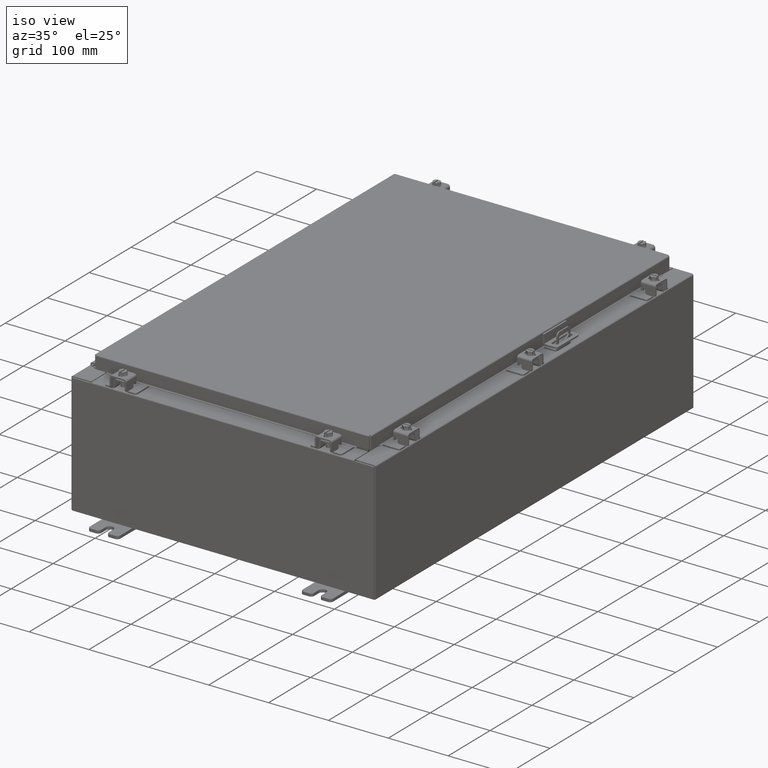
[diagram: clean part render]
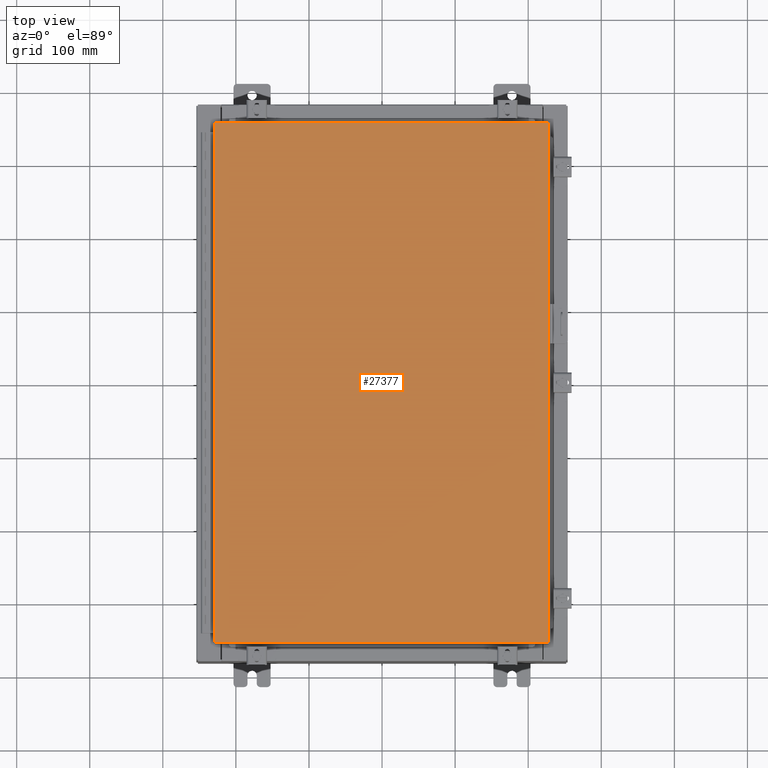
[diagram: tour spotlight — one face highlighted and labeled with its STEP entity id]
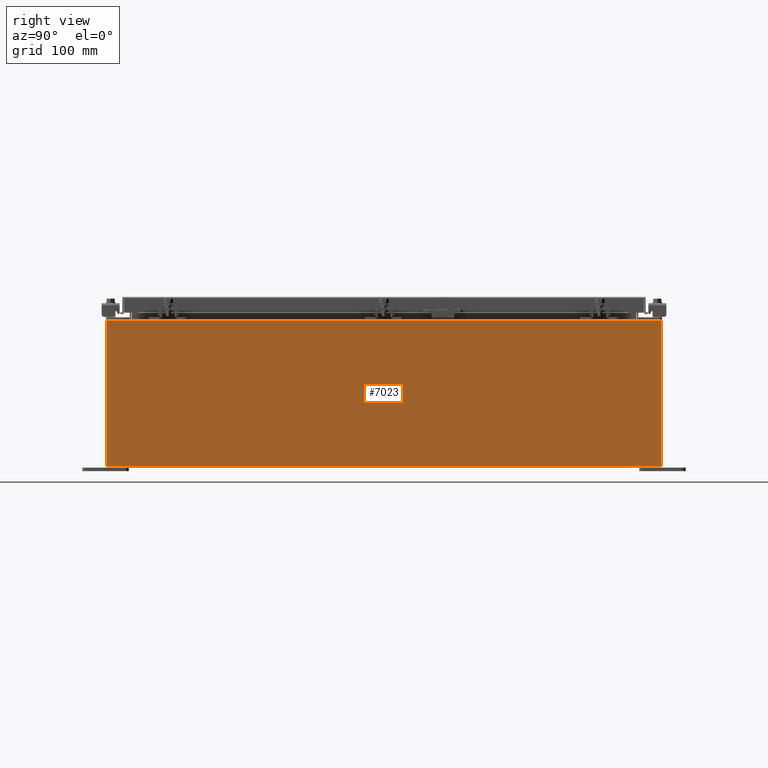
[diagram: tour spotlight — one face highlighted and labeled with its STEP entity id]
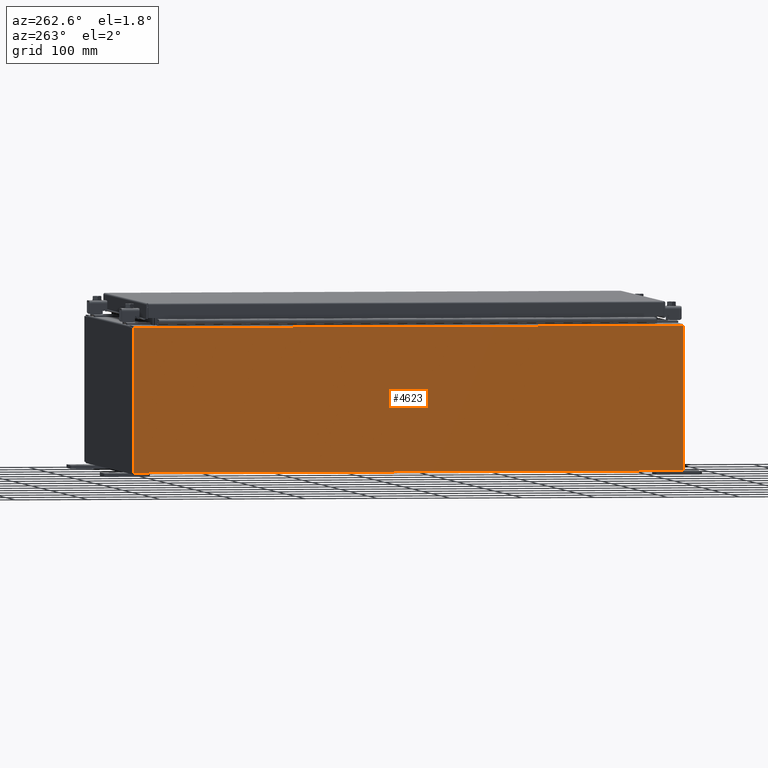
[diagram: tour spotlight — one face highlighted and labeled with its STEP entity id]
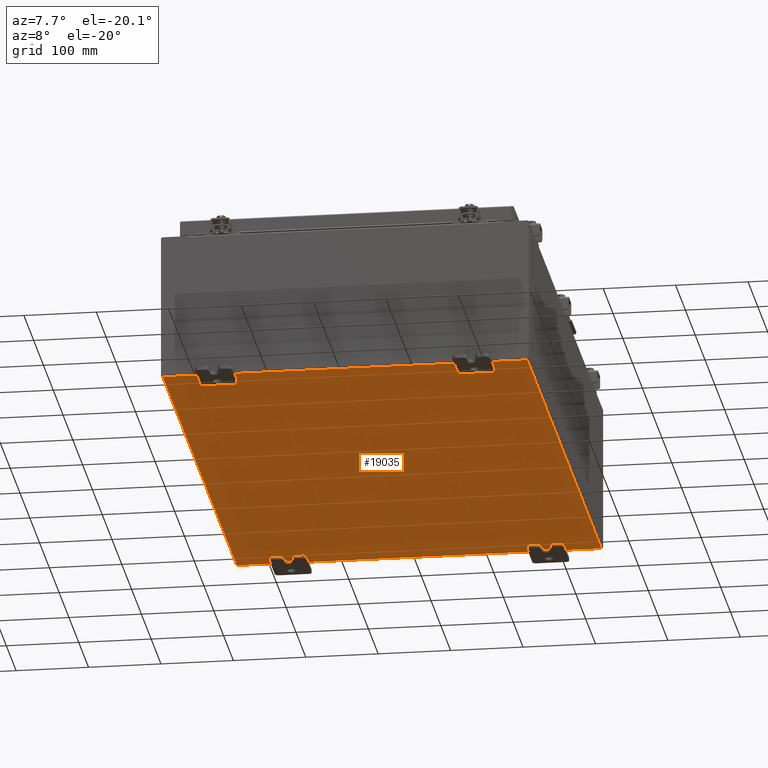
[diagram: tour spotlight — one face highlighted and labeled with its STEP entity id]
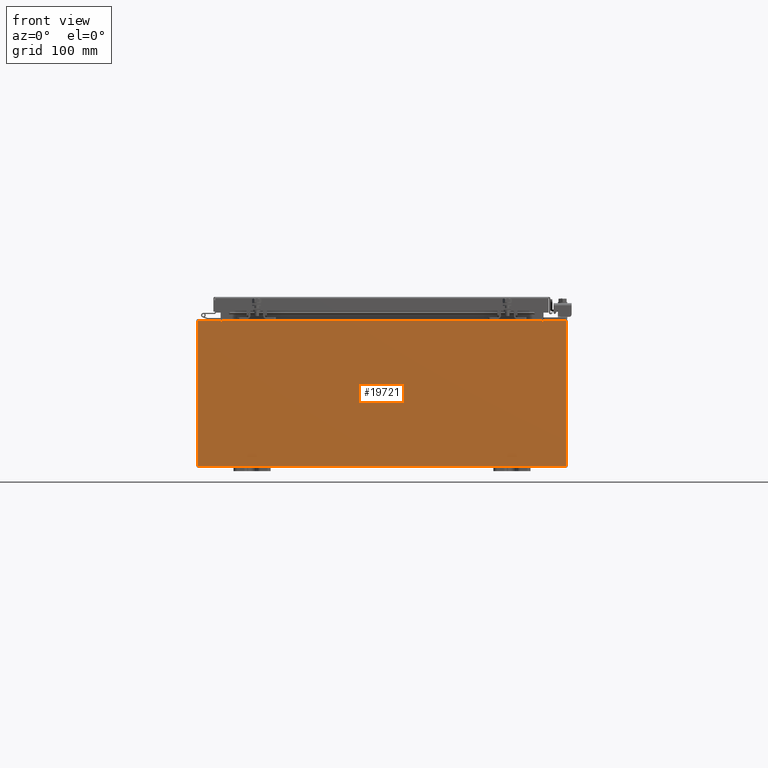
[diagram: tour spotlight — one face highlighted and labeled with its STEP entity id]
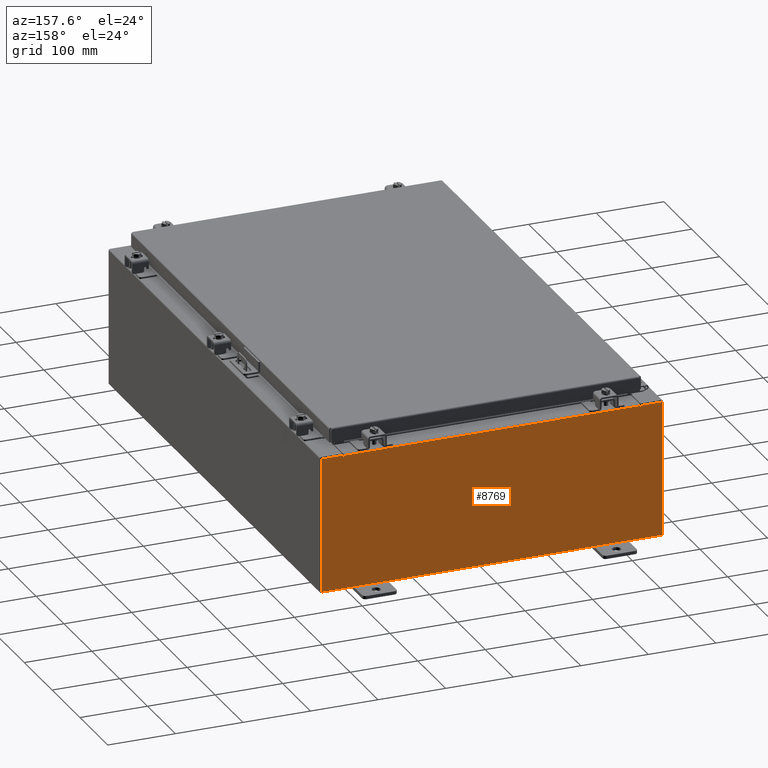
[diagram: tour spotlight — one face highlighted and labeled with its STEP entity id]
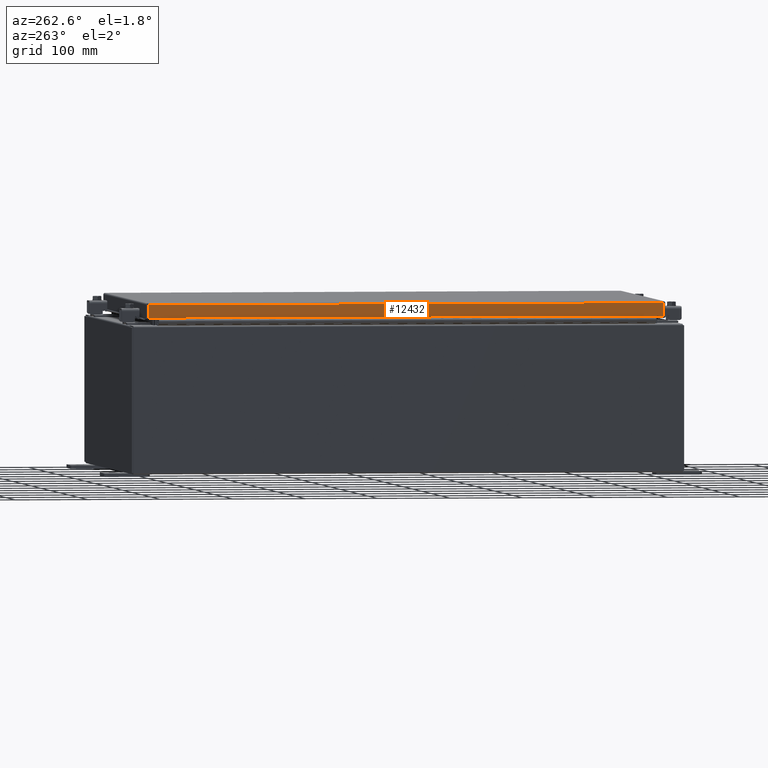
[diagram: tour spotlight — one face highlighted and labeled with its STEP entity id]
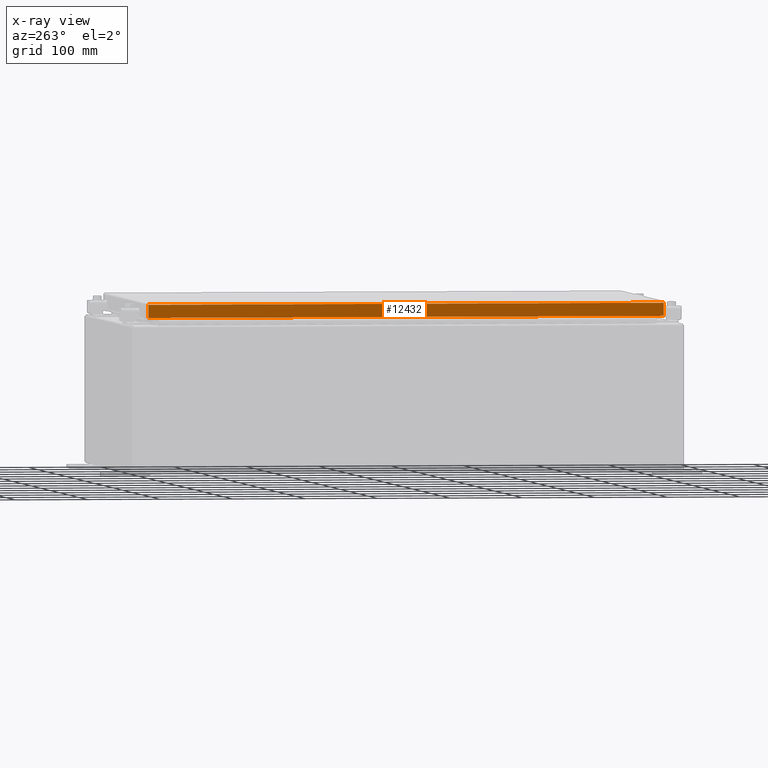
[diagram: x-ray of the same camera — body ghosted, this tour face saturated]
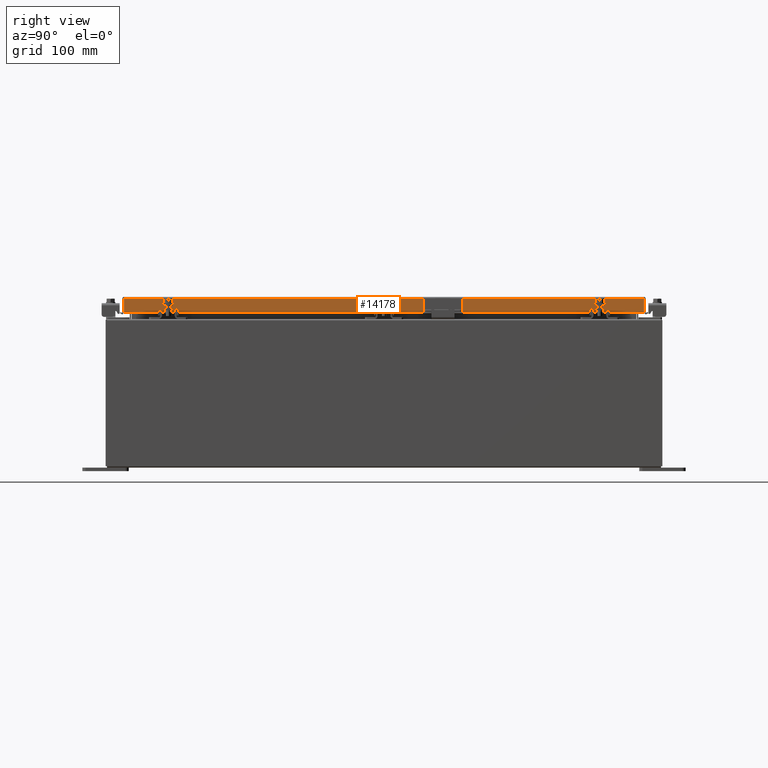
[diagram: tour spotlight — one face highlighted and labeled with its STEP entity id]
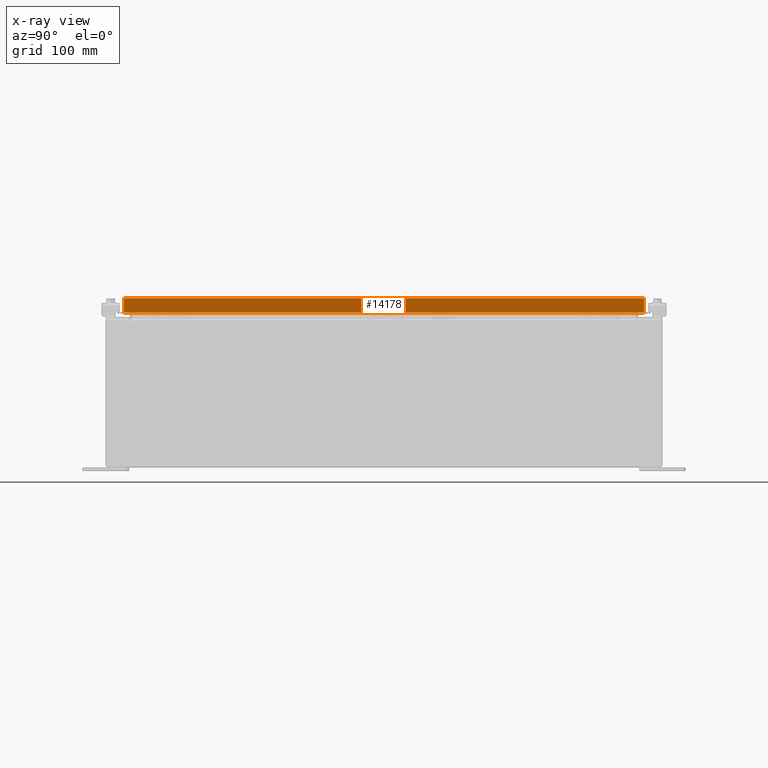
[diagram: x-ray of the same camera — body ghosted, this tour face saturated]
A machine part: a face-by-face anatomy tour. The part has 1990 B-rep faces; the first image is the clean iso view, then the 8 largest visible faces are spotlighted one at a time (largest first), each with its STEP entity span.

Face 1 — top view, entity #27377. In plain terms, the highlighted planar face has unit normal (0, 0, -1).
Definition (entity closure, byte-faithful):
#475 = VERTEX_POINT ( 'NONE', #7114 ) ;
#629 = EDGE_CURVE ( 'NONE', #938, #4079, #14729, .T. ) ;
#938 = VERTEX_POINT ( 'NONE', #13542 ) ;
#2000 = CARTESIAN_POINT ( 'NONE',  ( -8.990299999999997700, -14.00629999999999800, 1.980589795406590900E-015 ) ) ;
#2462 = ORIENTED_EDGE ( 'NONE', *, *, #22999, .T. ) ;
#4079 = VERTEX_POINT ( 'NONE', #2000 ) ;
#5533 = DIRECTION ( 'NONE',  ( -1.000000000000000000, -0.0000000000000000000, -0.0000000000000000000 ) ) ;
#5665 = CARTESIAN_POINT ( 'NONE',  ( 8.990300000000001300, 14.00629999999999800, -2.048885995248197400E-016 ) ) ;
#5849 = VECTOR ( 'NONE', #16493, 39.37007874015748100 ) ;
#7114 = CARTESIAN_POINT ( 'NONE',  ( 8.990300000000001300, 14.00629999999999800, -2.048885995248197400E-016 ) ) ;
#7636 = EDGE_LOOP ( 'NONE', ( #2462, #20378, #21384, #10568 ) ) ;
#8872 = AXIS2_PLACEMENT_3D ( 'NONE', #36419, #36021, #35971 ) ;
#10568 = ORIENTED_EDGE ( 'NONE', *, *, #629, .T. ) ;
#11261 = CARTESIAN_POINT ( 'NONE',  ( 8.990300000000001300, -14.00629999999999800, -7.512581982576723400E-016 ) ) ;
#11635 = DIRECTION ( 'NONE',  ( 0.0000000000000000000, 1.000000000000000000, 0.0000000000000000000 ) ) ;
#13425 = LINE ( 'NONE', #16292, #5849 ) ;
#13542 = CARTESIAN_POINT ( 'NONE',  ( -8.990299999999997700, 14.00630000000000100, -2.048885995248197400E-016 ) ) ;
#14729 = LINE ( 'NONE', #31094, #21573 ) ;
#16292 = CARTESIAN_POINT ( 'NONE',  ( -8.990299999999996000, -14.00629999999999800, 1.963515745446189200E-015 ) ) ;
#16493 = DIRECTION ( 'NONE',  ( 1.000000000000000000, -0.0000000000000000000, -0.0000000000000000000 ) ) ;
#17224 = EDGE_CURVE ( 'NONE', #475, #938, #29372, .T. ) ;
#19343 = VERTEX_POINT ( 'NONE', #35820 ) ;
#20378 = ORIENTED_EDGE ( 'NONE', *, *, #28777, .T. ) ;
#21258 = LINE ( 'NONE', #11261, #28070 ) ;
#21384 = ORIENTED_EDGE ( 'NONE', *, *, #17224, .T. ) ;
#21573 = VECTOR ( 'NONE', #25263, 39.37007874015748100 ) ;
#21648 = VECTOR ( 'NONE', #5533, 39.37007874015748100 ) ;
#22999 = EDGE_CURVE ( 'NONE', #4079, #19343, #13425, .T. ) ;
#25263 = DIRECTION ( 'NONE',  ( 0.0000000000000000000, -1.000000000000000000, 0.0000000000000000000 ) ) ;
#27377 = ADVANCED_FACE ( 'NONE', ( #33611 ), #36030, .F. ) ;
#28070 = VECTOR ( 'NONE', #11635, 39.37007874015748100 ) ;
#28777 = EDGE_CURVE ( 'NONE', #19343, #475, #21258, .T. ) ;
#29372 = LINE ( 'NONE', #5665, #21648 ) ;
#31094 = CARTESIAN_POINT ( 'NONE',  ( -8.990299999999997700, 14.00630000000000100, -2.048885995248197400E-016 ) ) ;
#33611 = FACE_OUTER_BOUND ( 'NONE', #7636, .T. ) ;
#35820 = CARTESIAN_POINT ( 'NONE',  ( 8.990300000000001300, -14.00629999999999800, -7.512581982576723400E-016 ) ) ;
#35971 = DIRECTION ( 'NONE',  ( -1.000000000000000000, 0.0000000000000000000, -0.0000000000000000000 ) ) ;
#36021 = DIRECTION ( 'NONE',  ( 0.0000000000000000000, 0.0000000000000000000, -1.000000000000000000 ) ) ;
#36030 = PLANE ( 'NONE',  #8872 ) ;
#36419 = CARTESIAN_POINT ( 'NONE',  ( 0.0000000000000000000, 0.0000000000000000000, 0.0000000000000000000 ) ) ;

Face 2 — right view, entity #7023. In plain terms, the highlighted planar face has unit normal (-1, 0, 0).
Definition (entity closure, byte-faithful):
#1885 = FACE_OUTER_BOUND ( 'NONE', #34817, .T. ) ;
#2250 = ORIENTED_EDGE ( 'NONE', *, *, #13161, .F. ) ;
#4638 = LINE ( 'NONE', #7031, #27668 ) ;
#6054 = CARTESIAN_POINT ( 'NONE',  ( 10.00000000000000000, 14.92530000000000500, 0.01299999999999984700 ) ) ;
#6240 = VECTOR ( 'NONE', #17016, 39.37007874015748100 ) ;
#6818 = DIRECTION ( 'NONE',  ( -3.584876173029202900E-015, 0.0000000000000000000, -1.000000000000000000 ) ) ;
#7023 = ADVANCED_FACE ( 'NONE', ( #1885 ), #33181, .F. ) ;
#7031 = CARTESIAN_POINT ( 'NONE',  ( 10.00000000000000000, -14.92529999999999600, -3.610957538630361200E-014 ) ) ;
#7993 = ORIENTED_EDGE ( 'NONE', *, *, #30471, .T. ) ;
#8441 = VERTEX_POINT ( 'NONE', #6054 ) ;
#9961 = ORIENTED_EDGE ( 'NONE', *, *, #32206, .T. ) ;
#11631 = LINE ( 'NONE', #16701, #18460 ) ;
#12446 = VERTEX_POINT ( 'NONE', #30244 ) ;
#12506 = AXIS2_PLACEMENT_3D ( 'NONE', #34613, #33097, #33052 ) ;
#13038 = EDGE_CURVE ( 'NONE', #8441, #27690, #14725, .T. ) ;
#13161 = EDGE_CURVE ( 'NONE', #8441, #12446, #32498, .T. ) ;
#14725 = LINE ( 'NONE', #17185, #6240 ) ;
#14907 = DIRECTION ( 'NONE',  ( -0.0000000000000000000, -1.000000000000000000, -0.0000000000000000000 ) ) ;
#15236 = CARTESIAN_POINT ( 'NONE',  ( 10.00000000000000000, -14.92529999999999600, 0.01299999999999984700 ) ) ;
#15367 = VERTEX_POINT ( 'NONE', #21803 ) ;
#15771 = ORIENTED_EDGE ( 'NONE', *, *, #13038, .T. ) ;
#16273 = DIRECTION ( 'NONE',  ( -0.0000000000000000000, -1.000000000000000000, -0.0000000000000000000 ) ) ;
#16701 = CARTESIAN_POINT ( 'NONE',  ( 10.00000000000002800, 14.92530000000000700, 7.837599999999992100 ) ) ;
#16964 = VECTOR ( 'NONE', #14907, 39.37007874015748100 ) ;
#17016 = DIRECTION ( 'NONE',  ( 3.584876173029202900E-015, 0.0000000000000000000, 1.000000000000000000 ) ) ;
#17185 = CARTESIAN_POINT ( 'NONE',  ( 10.00000000000000000, 14.92530000000000500, -3.610957538630361200E-014 ) ) ;
#18460 = VECTOR ( 'NONE', #16273, 39.37007874015748100 ) ;
#21803 = CARTESIAN_POINT ( 'NONE',  ( 10.00000000000002800, -14.92529999999999800, 7.837599999999998300 ) ) ;
#27668 = VECTOR ( 'NONE', #6818, 39.37007874015748100 ) ;
#27690 = VERTEX_POINT ( 'NONE', #30011 ) ;
#30011 = CARTESIAN_POINT ( 'NONE',  ( 10.00000000000002800, 14.92530000000000700, 7.837599999999992100 ) ) ;
#30244 = CARTESIAN_POINT ( 'NONE',  ( 10.00000000000000000, -14.92529999999999600, 0.01299999999999983600 ) ) ;
#30471 = EDGE_CURVE ( 'NONE', #15367, #12446, #4638, .T. ) ;
#32206 = EDGE_CURVE ( 'NONE', #27690, #15367, #11631, .T. ) ;
#32498 = LINE ( 'NONE', #15236, #16964 ) ;
#33052 = DIRECTION ( 'NONE',  ( 3.584876173029202900E-015, 0.0000000000000000000, 1.000000000000000000 ) ) ;
#33097 = DIRECTION ( 'NONE',  ( -1.000000000000000000, 0.0000000000000000000, 3.584876173029202900E-015 ) ) ;
#33181 = PLANE ( 'NONE',  #12506 ) ;
#34613 = CARTESIAN_POINT ( 'NONE',  ( 10.00000000000000000, 0.0000000000000000000, -3.610957538630361200E-014 ) ) ;
#34817 = EDGE_LOOP ( 'NONE', ( #9961, #7993, #2250, #15771 ) ) ;

Face 3 — auxiliary view, entity #4623. In plain terms, the highlighted planar face has unit normal (1, 0, 0).
Definition (entity closure, byte-faithful):
#1056 = CARTESIAN_POINT ( 'NONE',  ( -10.00000000000002800, -14.92529999999999600, 7.837599999999999200 ) ) ;
#1067 = LINE ( 'NONE', #1483, #15369 ) ;
#1483 = CARTESIAN_POINT ( 'NONE',  ( -10.00000000000002800, -14.92529999999999600, 7.837599999999999200 ) ) ;
#2331 = LINE ( 'NONE', #17515, #32169 ) ;
#2554 = VECTOR ( 'NONE', #6923, 39.37007874015748100 ) ;
#3440 = LINE ( 'NONE', #9462, #2554 ) ;
#3816 = CARTESIAN_POINT ( 'NONE',  ( -10.00000000000000000, 14.92530000000000500, 0.01299999999999983600 ) ) ;
#4623 = ADVANCED_FACE ( 'NONE', ( #20427 ), #12580, .F. ) ;
#6583 = VERTEX_POINT ( 'NONE', #17799 ) ;
#6923 = DIRECTION ( 'NONE',  ( 3.584876173029202900E-015, 0.0000000000000000000, -1.000000000000000000 ) ) ;
#8696 = VERTEX_POINT ( 'NONE', #1056 ) ;
#8750 = LINE ( 'NONE', #34552, #18226 ) ;
#9462 = CARTESIAN_POINT ( 'NONE',  ( -10.00000000000000000, 14.92530000000000500, -3.610957538630361200E-014 ) ) ;
#10233 = DIRECTION ( 'NONE',  ( 3.584876173029202900E-015, 0.0000000000000000000, -1.000000000000000000 ) ) ;
#10346 = DIRECTION ( 'NONE',  ( 1.000000000000000000, 0.0000000000000000000, 3.584876173029202900E-015 ) ) ;
#10911 = CARTESIAN_POINT ( 'NONE',  ( -10.00000000000000000, 0.0000000000000000000, -3.610957538630361200E-014 ) ) ;
#12580 = PLANE ( 'NONE',  #14141 ) ;
#13097 = CARTESIAN_POINT ( 'NONE',  ( -10.00000000000000000, -14.92529999999999600, 0.01299999999999984700 ) ) ;
#13756 = VERTEX_POINT ( 'NONE', #3816 ) ;
#14141 = AXIS2_PLACEMENT_3D ( 'NONE', #10911, #10346, #10233 ) ;
#15369 = VECTOR ( 'NONE', #19698, 39.37007874015748100 ) ;
#17515 = CARTESIAN_POINT ( 'NONE',  ( -10.00000000000000000, 14.92530000000000500, 0.01299999999999984700 ) ) ;
#17658 = DIRECTION ( 'NONE',  ( -0.0000000000000000000, 1.000000000000000000, -0.0000000000000000000 ) ) ;
#17799 = CARTESIAN_POINT ( 'NONE',  ( -10.00000000000002800, 14.92530000000000500, 7.837599999999999200 ) ) ;
#18226 = VECTOR ( 'NONE', #33632, 39.37007874015748100 ) ;
#19682 = ORIENTED_EDGE ( 'NONE', *, *, #35098, .T. ) ;
#19698 = DIRECTION ( 'NONE',  ( 0.0000000000000000000, 1.000000000000000000, 0.0000000000000000000 ) ) ;
#20427 = FACE_OUTER_BOUND ( 'NONE', #34152, .T. ) ;
#24668 = ORIENTED_EDGE ( 'NONE', *, *, #31215, .F. ) ;
#26034 = EDGE_CURVE ( 'NONE', #33708, #8696, #8750, .T. ) ;
#28820 = ORIENTED_EDGE ( 'NONE', *, *, #30523, .T. ) ;
#30523 = EDGE_CURVE ( 'NONE', #8696, #6583, #1067, .T. ) ;
#31215 = EDGE_CURVE ( 'NONE', #33708, #13756, #2331, .T. ) ;
#32169 = VECTOR ( 'NONE', #17658, 39.37007874015748100 ) ;
#33632 = DIRECTION ( 'NONE',  ( -3.584876173029202900E-015, 0.0000000000000000000, 1.000000000000000000 ) ) ;
#33708 = VERTEX_POINT ( 'NONE', #13097 ) ;
#34027 = ORIENTED_EDGE ( 'NONE', *, *, #26034, .T. ) ;
#34152 = EDGE_LOOP ( 'NONE', ( #28820, #19682, #24668, #34027 ) ) ;
#34552 = CARTESIAN_POINT ( 'NONE',  ( -10.00000000000000000, -14.92529999999999600, -3.610957538630361200E-014 ) ) ;
#35098 = EDGE_CURVE ( 'NONE', #6583, #13756, #3440, .T. ) ;

Face 4 — auxiliary view, entity #19035. In plain terms, the highlighted planar face has unit normal (0, 0, -1).
Definition (entity closure, byte-faithful):
#1306 = ORIENTED_EDGE ( 'NONE', *, *, #33336, .T. ) ;
#1864 = VERTEX_POINT ( 'NONE', #28387 ) ;
#4237 = CARTESIAN_POINT ( 'NONE',  ( -9.912300000000000100, 14.92530000000000500, -0.07470000000000000300 ) ) ;
#5539 = DIRECTION ( 'NONE',  ( -1.000000000000000000, 0.0000000000000000000, -0.0000000000000000000 ) ) ;
#5587 = DIRECTION ( 'NONE',  ( 0.0000000000000000000, 0.0000000000000000000, -1.000000000000000000 ) ) ;
#5623 = CARTESIAN_POINT ( 'NONE',  ( 0.0000000000000000000, 0.0000000000000000000, -0.07470000000000000300 ) ) ;
#5790 = PLANE ( 'NONE',  #23999 ) ;
#6225 = LINE ( 'NONE', #20234, #36181 ) ;
#8516 = VERTEX_POINT ( 'NONE', #4237 ) ;
#8638 = ORIENTED_EDGE ( 'NONE', *, *, #10090, .T. ) ;
#9033 = VERTEX_POINT ( 'NONE', #18899 ) ;
#9599 = VECTOR ( 'NONE', #25230, 39.37007874015748100 ) ;
#10090 = EDGE_CURVE ( 'NONE', #9033, #8516, #11364, .T. ) ;
#10106 = ORIENTED_EDGE ( 'NONE', *, *, #18287, .F. ) ;
#10256 = LINE ( 'NONE', #19918, #24765 ) ;
#11364 = LINE ( 'NONE', #25075, #9599 ) ;
#12739 = CARTESIAN_POINT ( 'NONE',  ( 9.912300000000000100, 14.92530000000000500, -0.07469999999999994700 ) ) ;
#18287 = EDGE_CURVE ( 'NONE', #37270, #8516, #10256, .T. ) ;
#18899 = CARTESIAN_POINT ( 'NONE',  ( -9.912300000000000100, -14.92529999999999600, -0.07469999999999994700 ) ) ;
#19035 = ADVANCED_FACE ( 'NONE', ( #30156 ), #5790, .T. ) ;
#19787 = EDGE_LOOP ( 'NONE', ( #28441, #8638, #10106, #1306 ) ) ;
#19918 = CARTESIAN_POINT ( 'NONE',  ( -10.00000000000000000, 14.92530000000000500, -0.07470000000000000300 ) ) ;
#20072 = DIRECTION ( 'NONE',  ( -1.000000000000000000, -0.0000000000000000000, -0.0000000000000000000 ) ) ;
#20132 = DIRECTION ( 'NONE',  ( -0.0000000000000000000, -1.000000000000000000, -0.0000000000000000000 ) ) ;
#20234 = CARTESIAN_POINT ( 'NONE',  ( 9.912300000000000100, 14.92530000000000500, -0.07469999999999994700 ) ) ;
#20936 = VECTOR ( 'NONE', #31343, 39.37007874015748100 ) ;
#21514 = EDGE_CURVE ( 'NONE', #9033, #1864, #21841, .T. ) ;
#21841 = LINE ( 'NONE', #31574, #20936 ) ;
#23999 = AXIS2_PLACEMENT_3D ( 'NONE', #5623, #5587, #5539 ) ;
#24765 = VECTOR ( 'NONE', #20072, 39.37007874015748100 ) ;
#25075 = CARTESIAN_POINT ( 'NONE',  ( -9.912300000000000100, -14.92529999999999600, -0.07469999999999994700 ) ) ;
#25230 = DIRECTION ( 'NONE',  ( -0.0000000000000000000, 1.000000000000000000, -0.0000000000000000000 ) ) ;
#28387 = CARTESIAN_POINT ( 'NONE',  ( 9.912300000000000100, -14.92529999999999600, -0.07470000000000000300 ) ) ;
#28441 = ORIENTED_EDGE ( 'NONE', *, *, #21514, .F. ) ;
#30156 = FACE_OUTER_BOUND ( 'NONE', #19787, .T. ) ;
#31343 = DIRECTION ( 'NONE',  ( 1.000000000000000000, 0.0000000000000000000, 0.0000000000000000000 ) ) ;
#31574 = CARTESIAN_POINT ( 'NONE',  ( -10.00000000000000000, -14.92529999999999600, -0.07470000000000000300 ) ) ;
#33336 = EDGE_CURVE ( 'NONE', #37270, #1864, #6225, .T. ) ;
#36181 = VECTOR ( 'NONE', #20132, 39.37007874015748100 ) ;
#37270 = VERTEX_POINT ( 'NONE', #12739 ) ;

Face 5 — front view, entity #19721. In plain terms, the highlighted planar face has unit normal (-0, 1, -0).
Definition (entity closure, byte-faithful):
#520 = EDGE_CURVE ( 'NONE', #16435, #26820, #16533, .T. ) ;
#1072 = DIRECTION ( 'NONE',  ( 0.0000000000000000000, -0.0000000000000000000, -1.000000000000000000 ) ) ;
#1108 = LINE ( 'NONE', #16418, #7796 ) ;
#1341 = DIRECTION ( 'NONE',  ( -1.000000000000000000, -0.0000000000000000000, -0.0000000000000000000 ) ) ;
#1382 = VERTEX_POINT ( 'NONE', #28411 ) ;
#1504 = CARTESIAN_POINT ( 'NONE',  ( -9.925300000000000000, 0.0000000000000000000, -3.925299999999999600 ) ) ;
#1626 = VECTOR ( 'NONE', #16230, 39.37007874015748100 ) ;
#1724 = ORIENTED_EDGE ( 'NONE', *, *, #16100, .T. ) ;
#2314 = AXIS2_PLACEMENT_3D ( 'NONE', #25347, #34207, #8509 ) ;
#2398 = CARTESIAN_POINT ( 'NONE',  ( 0.0000000000000000000, 0.0000000000000000000, 0.0000000000000000000 ) ) ;
#2740 = CARTESIAN_POINT ( 'NONE',  ( 8.674550000000000000, 0.0000000000000000000, 3.874949999999999700 ) ) ;
#2780 = CARTESIAN_POINT ( 'NONE',  ( -9.925300000000000000, 0.0000000000000000000, 3.925299999999999600 ) ) ;
#3117 = DIRECTION ( 'NONE',  ( 0.0000000000000000000, -1.000000000000000000, 0.0000000000000000000 ) ) ;
#3207 = DIRECTION ( 'NONE',  ( 1.000000000000000000, 0.0000000000000000000, 0.0000000000000000000 ) ) ;
#3434 = FACE_OUTER_BOUND ( 'NONE', #23577, .T. ) ;
#4383 = LINE ( 'NONE', #2780, #10190 ) ;
#4990 = VECTOR ( 'NONE', #1341, 39.37007874015748100 ) ;
#4994 = CARTESIAN_POINT ( 'NONE',  ( 9.925300000000000000, 0.0000000000000000000, 3.925299999999999600 ) ) ;
#5119 = VERTEX_POINT ( 'NONE', #37177 ) ;
#5676 = EDGE_CURVE ( 'NONE', #9107, #33874, #1108, .T. ) ;
#6220 = CARTESIAN_POINT ( 'NONE',  ( 8.637200000000000000, 0.0000000000000000000, 3.874949999999999700 ) ) ;
#6231 = CARTESIAN_POINT ( 'NONE',  ( -8.637199999999996400, -0.0000000000000000000, 3.874949999999999700 ) ) ;
#6502 = VECTOR ( 'NONE', #28205, 39.37007874015748100 ) ;
#6802 = ORIENTED_EDGE ( 'NONE', *, *, #19164, .T. ) ;
#7770 = ORIENTED_EDGE ( 'NONE', *, *, #26327, .T. ) ;
#7796 = VECTOR ( 'NONE', #16341, 39.37007874015748100 ) ;
#8110 = ORIENTED_EDGE ( 'NONE', *, *, #5676, .T. ) ;
#8509 = DIRECTION ( 'NONE',  ( 0.0000000000000000000, 0.0000000000000000000, -1.000000000000000000 ) ) ;
#8851 = DIRECTION ( 'NONE',  ( -0.0000000000000000000, -0.0000000000000000000, 1.000000000000000000 ) ) ;
#9093 = CARTESIAN_POINT ( 'NONE',  ( -9.925300000000000000, 0.0000000000000000000, 3.925299999999999600 ) ) ;
#9107 = VERTEX_POINT ( 'NONE', #14871 ) ;
#9243 = CARTESIAN_POINT ( 'NONE',  ( 8.637200000000000000, 0.0000000000000000000, 0.0000000000000000000 ) ) ;
#10190 = VECTOR ( 'NONE', #3207, 39.37007874015748100 ) ;
#10303 = CARTESIAN_POINT ( 'NONE',  ( 8.637200000000000000, 0.0000000000000000000, 3.912299999999999700 ) ) ;
#12053 = CARTESIAN_POINT ( 'NONE',  ( -9.925300000000000000, 0.0000000000000000000, -3.925299999999999600 ) ) ;
#12595 = LINE ( 'NONE', #1504, #4990 ) ;
#14018 = DIRECTION ( 'NONE',  ( 0.0000000000000000000, 0.0000000000000000000, 1.000000000000000000 ) ) ;
#14095 = CARTESIAN_POINT ( 'NONE',  ( -8.674549999999996400, -0.0000000000000000000, 0.0000000000000000000 ) ) ;
#14738 = LINE ( 'NONE', #9243, #37096 ) ;
#14871 = CARTESIAN_POINT ( 'NONE',  ( -8.637199999999996400, 1.024442997624098700E-016, 3.912299999999999700 ) ) ;
#15188 = AXIS2_PLACEMENT_3D ( 'NONE', #18420, #18322, #18290 ) ;
#15419 = CARTESIAN_POINT ( 'NONE',  ( -8.674549999999996400, 0.0000000000000000000, 3.925299999999999600 ) ) ;
#15713 = EDGE_CURVE ( 'NONE', #17912, #19080, #16826, .T. ) ;
#15797 = DIRECTION ( 'NONE',  ( 0.0000000000000000000, 0.0000000000000000000, -1.000000000000000000 ) ) ;
#15894 = PLANE ( 'NONE',  #22645 ) ;
#16100 = EDGE_CURVE ( 'NONE', #28733, #35049, #16798, .T. ) ;
#16221 = CARTESIAN_POINT ( 'NONE',  ( -9.925300000000000000, 0.0000000000000000000, 3.925299999999999600 ) ) ;
#16230 = DIRECTION ( 'NONE',  ( 1.000000000000000000, 0.0000000000000000000, 0.0000000000000000000 ) ) ;
#16341 = DIRECTION ( 'NONE',  ( 1.000000000000000000, 0.0000000000000000000, 0.0000000000000000000 ) ) ;
#16410 = ORIENTED_EDGE ( 'NONE', *, *, #23602, .F. ) ;
#16418 = CARTESIAN_POINT ( 'NONE',  ( -8.637200000000000000, 1.024442997624098700E-016, 3.912299999999999700 ) ) ;
#16435 = VERTEX_POINT ( 'NONE', #2740 ) ;
#16533 = CIRCLE ( 'NONE', #2314, 0.01867500000000003900 ) ;
#16798 = LINE ( 'NONE', #9093, #31414 ) ;
#16826 = LINE ( 'NONE', #16221, #1626 ) ;
#17329 = ORIENTED_EDGE ( 'NONE', *, *, #29272, .T. ) ;
#17912 = VERTEX_POINT ( 'NONE', #26594 ) ;
#17997 = EDGE_CURVE ( 'NONE', #17912, #16435, #26120, .T. ) ;
#18290 = DIRECTION ( 'NONE',  ( 0.0000000000000000000, 0.0000000000000000000, -1.000000000000000000 ) ) ;
#18322 = DIRECTION ( 'NONE',  ( -0.0000000000000000000, 1.000000000000000000, -0.0000000000000000000 ) ) ;
#18420 = CARTESIAN_POINT ( 'NONE',  ( -8.655874999999996400, 0.0000000000000000000, 3.874949999999999700 ) ) ;
#18628 = EDGE_CURVE ( 'NONE', #5119, #36687, #21550, .T. ) ;
#19080 = VERTEX_POINT ( 'NONE', #4994 ) ;
#19164 = EDGE_CURVE ( 'NONE', #35049, #36687, #4383, .T. ) ;
#19721 = ADVANCED_FACE ( 'NONE', ( #3434 ), #15894, .F. ) ;
#19773 = VECTOR ( 'NONE', #15797, 39.37007874015748100 ) ;
#20699 = LINE ( 'NONE', #24325, #19773 ) ;
#21550 = LINE ( 'NONE', #14095, #36178 ) ;
#22645 = AXIS2_PLACEMENT_3D ( 'NONE', #2398, #3117, #1072 ) ;
#23577 = EDGE_LOOP ( 'NONE', ( #34706, #16410, #24416, #8110, #34424, #24644, #28729, #35276, #7770, #17329, #1724, #6802 ) ) ;
#23602 = EDGE_CURVE ( 'NONE', #35417, #5119, #25205, .T. ) ;
#23755 = DIRECTION ( 'NONE',  ( 0.0000000000000000000, 0.0000000000000000000, 1.000000000000000000 ) ) ;
#24325 = CARTESIAN_POINT ( 'NONE',  ( -8.637199999999996400, -0.0000000000000000000, 0.0000000000000000000 ) ) ;
#24416 = ORIENTED_EDGE ( 'NONE', *, *, #36756, .F. ) ;
#24638 = CARTESIAN_POINT ( 'NONE',  ( 8.674549999999747700, -0.0000000000000000000, -5.647877341832665300E-013 ) ) ;
#24644 = ORIENTED_EDGE ( 'NONE', *, *, #520, .F. ) ;
#24733 = DIRECTION ( 'NONE',  ( -6.510859170600007400E-014, 0.0000000000000000000, -1.000000000000000000 ) ) ;
#25205 = CIRCLE ( 'NONE', #15188, 0.01867500000000003900 ) ;
#25222 = VECTOR ( 'NONE', #24733, 39.37007874015748100 ) ;
#25347 = CARTESIAN_POINT ( 'NONE',  ( 8.655875000000000000, 0.0000000000000000000, 3.874949999999999700 ) ) ;
#26120 = LINE ( 'NONE', #24638, #25222 ) ;
#26327 = EDGE_CURVE ( 'NONE', #19080, #1382, #37348, .T. ) ;
#26594 = CARTESIAN_POINT ( 'NONE',  ( 8.674550000000001800, 0.0000000000000000000, 3.925299999999999600 ) ) ;
#26820 = VERTEX_POINT ( 'NONE', #6220 ) ;
#28205 = DIRECTION ( 'NONE',  ( 0.0000000000000000000, 0.0000000000000000000, -1.000000000000000000 ) ) ;
#28411 = CARTESIAN_POINT ( 'NONE',  ( 9.925300000000000000, 0.0000000000000000000, -3.925299999999999600 ) ) ;
#28729 = ORIENTED_EDGE ( 'NONE', *, *, #17997, .F. ) ;
#28733 = VERTEX_POINT ( 'NONE', #12053 ) ;
#29272 = EDGE_CURVE ( 'NONE', #1382, #28733, #12595, .T. ) ;
#31414 = VECTOR ( 'NONE', #8851, 39.37007874015748100 ) ;
#32526 = CARTESIAN_POINT ( 'NONE',  ( 9.925300000000000000, 0.0000000000000000000, 3.925299999999999600 ) ) ;
#32634 = CARTESIAN_POINT ( 'NONE',  ( -9.925300000000000000, 0.0000000000000000000, 3.925299999999999600 ) ) ;
#33874 = VERTEX_POINT ( 'NONE', #10303 ) ;
#34207 = DIRECTION ( 'NONE',  ( -0.0000000000000000000, 1.000000000000000000, -0.0000000000000000000 ) ) ;
#34424 = ORIENTED_EDGE ( 'NONE', *, *, #37147, .F. ) ;
#34706 = ORIENTED_EDGE ( 'NONE', *, *, #18628, .F. ) ;
#35049 = VERTEX_POINT ( 'NONE', #32634 ) ;
#35276 = ORIENTED_EDGE ( 'NONE', *, *, #15713, .T. ) ;
#35417 = VERTEX_POINT ( 'NONE', #6231 ) ;
#36178 = VECTOR ( 'NONE', #14018, 39.37007874015748100 ) ;
#36687 = VERTEX_POINT ( 'NONE', #15419 ) ;
#36756 = EDGE_CURVE ( 'NONE', #9107, #35417, #20699, .T. ) ;
#37096 = VECTOR ( 'NONE', #23755, 39.37007874015748100 ) ;
#37147 = EDGE_CURVE ( 'NONE', #26820, #33874, #14738, .T. ) ;
#37177 = CARTESIAN_POINT ( 'NONE',  ( -8.674549999999996400, 0.0000000000000000000, 3.874949999999999700 ) ) ;
#37348 = LINE ( 'NONE', #32526, #6502 ) ;

Face 6 — auxiliary view, entity #8769. In plain terms, the highlighted planar face has unit normal (0, -1, 0).
Definition (entity closure, byte-faithful):
#79 = CARTESIAN_POINT ( 'NONE',  ( -8.637199999999996400, -0.0000000000000000000, 3.874949999999999700 ) ) ;
#951 = VERTEX_POINT ( 'NONE', #15082 ) ;
#1555 = AXIS2_PLACEMENT_3D ( 'NONE', #32882, #32871, #32840 ) ;
#2615 = ORIENTED_EDGE ( 'NONE', *, *, #37365, .T. ) ;
#2664 = VECTOR ( 'NONE', #7454, 39.37007874015748100 ) ;
#3214 = VECTOR ( 'NONE', #10023, 39.37007874015748100 ) ;
#3333 = ORIENTED_EDGE ( 'NONE', *, *, #10297, .T. ) ;
#3950 = EDGE_CURVE ( 'NONE', #27489, #37186, #24597, .T. ) ;
#4500 = CARTESIAN_POINT ( 'NONE',  ( 8.637200000000000000, 0.0000000000000000000, 3.912299999999999700 ) ) ;
#4911 = DIRECTION ( 'NONE',  ( 0.0000000000000000000, 0.0000000000000000000, 1.000000000000000000 ) ) ;
#4943 = CARTESIAN_POINT ( 'NONE',  ( -8.674549999999996400, -0.0000000000000000000, 0.0000000000000000000 ) ) ;
#5098 = DIRECTION ( 'NONE',  ( -0.0000000000000000000, 1.000000000000000000, -0.0000000000000000000 ) ) ;
#7034 = VECTOR ( 'NONE', #28656, 39.37007874015748100 ) ;
#7437 = VECTOR ( 'NONE', #4911, 39.37007874015748100 ) ;
#7454 = DIRECTION ( 'NONE',  ( -0.0000000000000000000, -0.0000000000000000000, 1.000000000000000000 ) ) ;
#7485 = DIRECTION ( 'NONE',  ( 1.000000000000000000, 0.0000000000000000000, 0.0000000000000000000 ) ) ;
#7583 = CARTESIAN_POINT ( 'NONE',  ( -9.925300000000000000, 0.0000000000000000000, 3.925299999999999600 ) ) ;
#8302 = DIRECTION ( 'NONE',  ( -1.000000000000000000, -0.0000000000000000000, -0.0000000000000000000 ) ) ;
#8341 = CARTESIAN_POINT ( 'NONE',  ( -9.925300000000000000, 0.0000000000000000000, -3.925299999999999600 ) ) ;
#8363 = EDGE_CURVE ( 'NONE', #951, #27988, #11134, .T. ) ;
#8443 = ORIENTED_EDGE ( 'NONE', *, *, #28844, .F. ) ;
#8769 = ADVANCED_FACE ( 'NONE', ( #36182 ), #37230, .F. ) ;
#8971 = CARTESIAN_POINT ( 'NONE',  ( 8.674550000000001800, 0.0000000000000000000, 3.925299999999999600 ) ) ;
#9027 = VERTEX_POINT ( 'NONE', #15291 ) ;
#9206 = CARTESIAN_POINT ( 'NONE',  ( 8.674550000000000000, 0.0000000000000000000, 3.874949999999999700 ) ) ;
#9663 = EDGE_CURVE ( 'NONE', #31811, #27489, #15558, .T. ) ;
#10023 = DIRECTION ( 'NONE',  ( 0.0000000000000000000, 0.0000000000000000000, -1.000000000000000000 ) ) ;
#10193 = CARTESIAN_POINT ( 'NONE',  ( -8.637199999999996400, -0.0000000000000000000, 0.0000000000000000000 ) ) ;
#10297 = EDGE_CURVE ( 'NONE', #18877, #31071, #15856, .T. ) ;
#10336 = CARTESIAN_POINT ( 'NONE',  ( -8.637200000000000000, 1.024442997624098700E-016, 3.912299999999999700 ) ) ;
#10689 = VECTOR ( 'NONE', #17330, 39.37007874015748100 ) ;
#11134 = LINE ( 'NONE', #7583, #2664 ) ;
#12008 = CARTESIAN_POINT ( 'NONE',  ( 9.925300000000000000, 0.0000000000000000000, 3.925299999999999600 ) ) ;
#12088 = ORIENTED_EDGE ( 'NONE', *, *, #3950, .F. ) ;
#12093 = DIRECTION ( 'NONE',  ( 0.0000000000000000000, 0.0000000000000000000, -1.000000000000000000 ) ) ;
#12634 = LINE ( 'NONE', #10193, #3214 ) ;
#13856 = VECTOR ( 'NONE', #31869, 39.37007874015748100 ) ;
#14294 = ORIENTED_EDGE ( 'NONE', *, *, #25114, .T. ) ;
#14360 = AXIS2_PLACEMENT_3D ( 'NONE', #23194, #5098, #23153 ) ;
#14990 = ORIENTED_EDGE ( 'NONE', *, *, #9663, .F. ) ;
#15082 = CARTESIAN_POINT ( 'NONE',  ( -9.925300000000000000, 0.0000000000000000000, -3.925299999999999600 ) ) ;
#15291 = CARTESIAN_POINT ( 'NONE',  ( 9.925300000000000000, 0.0000000000000000000, -3.925299999999999600 ) ) ;
#15558 = CIRCLE ( 'NONE', #1555, 0.01867500000000003900 ) ;
#15656 = LINE ( 'NONE', #17289, #10689 ) ;
#15856 = LINE ( 'NONE', #21885, #23592 ) ;
#17243 = VERTEX_POINT ( 'NONE', #4500 ) ;
#17289 = CARTESIAN_POINT ( 'NONE',  ( 8.637200000000000000, 0.0000000000000000000, 0.0000000000000000000 ) ) ;
#17330 = DIRECTION ( 'NONE',  ( 0.0000000000000000000, 0.0000000000000000000, 1.000000000000000000 ) ) ;
#18610 = ORIENTED_EDGE ( 'NONE', *, *, #22198, .T. ) ;
#18877 = VERTEX_POINT ( 'NONE', #8971 ) ;
#18897 = EDGE_CURVE ( 'NONE', #9027, #951, #34757, .T. ) ;
#20405 = EDGE_LOOP ( 'NONE', ( #12088, #14990, #8443, #2615, #33359, #22086, #28050, #3333, #18610, #33561, #35760, #14294 ) ) ;
#21034 = DIRECTION ( 'NONE',  ( 1.000000000000000000, 0.0000000000000000000, 0.0000000000000000000 ) ) ;
#21226 = CARTESIAN_POINT ( 'NONE',  ( 9.925300000000000000, 0.0000000000000000000, 3.925299999999999600 ) ) ;
#21350 = LINE ( 'NONE', #12008, #36858 ) ;
#21885 = CARTESIAN_POINT ( 'NONE',  ( -9.925300000000000000, 0.0000000000000000000, 3.925299999999999600 ) ) ;
#22011 = VECTOR ( 'NONE', #7485, 39.37007874015748100 ) ;
#22086 = ORIENTED_EDGE ( 'NONE', *, *, #24401, .F. ) ;
#22198 = EDGE_CURVE ( 'NONE', #31071, #9027, #21350, .T. ) ;
#22872 = CIRCLE ( 'NONE', #14360, 0.01867500000000003900 ) ;
#23153 = DIRECTION ( 'NONE',  ( 0.0000000000000000000, 0.0000000000000000000, -1.000000000000000000 ) ) ;
#23194 = CARTESIAN_POINT ( 'NONE',  ( 8.655875000000000000, 0.0000000000000000000, 3.874949999999999700 ) ) ;
#23225 = EDGE_CURVE ( 'NONE', #18877, #25715, #37118, .T. ) ;
#23592 = VECTOR ( 'NONE', #21034, 39.37007874015748100 ) ;
#23657 = EDGE_CURVE ( 'NONE', #30185, #17243, #15656, .T. ) ;
#24401 = EDGE_CURVE ( 'NONE', #25715, #30185, #22872, .T. ) ;
#24597 = LINE ( 'NONE', #4943, #7437 ) ;
#24837 = AXIS2_PLACEMENT_3D ( 'NONE', #28491, #36959, #36948 ) ;
#24990 = CARTESIAN_POINT ( 'NONE',  ( -9.925300000000000000, 0.0000000000000000000, 3.925299999999999600 ) ) ;
#25114 = EDGE_CURVE ( 'NONE', #27988, #37186, #31025, .T. ) ;
#25715 = VERTEX_POINT ( 'NONE', #9206 ) ;
#26995 = VECTOR ( 'NONE', #8302, 39.37007874015748100 ) ;
#27489 = VERTEX_POINT ( 'NONE', #33963 ) ;
#27988 = VERTEX_POINT ( 'NONE', #24990 ) ;
#28050 = ORIENTED_EDGE ( 'NONE', *, *, #23225, .F. ) ;
#28060 = CARTESIAN_POINT ( 'NONE',  ( 8.637200000000000000, 0.0000000000000000000, 3.874949999999999700 ) ) ;
#28491 = CARTESIAN_POINT ( 'NONE',  ( 0.0000000000000000000, 0.0000000000000000000, 0.0000000000000000000 ) ) ;
#28656 = DIRECTION ( 'NONE',  ( 1.000000000000000000, 0.0000000000000000000, 0.0000000000000000000 ) ) ;
#28844 = EDGE_CURVE ( 'NONE', #32550, #31811, #12634, .T. ) ;
#28873 = CARTESIAN_POINT ( 'NONE',  ( -9.925300000000000000, 0.0000000000000000000, 3.925299999999999600 ) ) ;
#29753 = LINE ( 'NONE', #10336, #22011 ) ;
#30185 = VERTEX_POINT ( 'NONE', #28060 ) ;
#31025 = LINE ( 'NONE', #28873, #7034 ) ;
#31071 = VERTEX_POINT ( 'NONE', #21226 ) ;
#31811 = VERTEX_POINT ( 'NONE', #79 ) ;
#31869 = DIRECTION ( 'NONE',  ( -6.510859170600007400E-014, 0.0000000000000000000, -1.000000000000000000 ) ) ;
#32458 = CARTESIAN_POINT ( 'NONE',  ( 8.674549999999747700, -0.0000000000000000000, -5.647877341832665300E-013 ) ) ;
#32550 = VERTEX_POINT ( 'NONE', #36074 ) ;
#32575 = CARTESIAN_POINT ( 'NONE',  ( -8.674549999999996400, 0.0000000000000000000, 3.925299999999999600 ) ) ;
#32840 = DIRECTION ( 'NONE',  ( 0.0000000000000000000, 0.0000000000000000000, -1.000000000000000000 ) ) ;
#32871 = DIRECTION ( 'NONE',  ( -0.0000000000000000000, 1.000000000000000000, -0.0000000000000000000 ) ) ;
#32882 = CARTESIAN_POINT ( 'NONE',  ( -8.655874999999996400, 0.0000000000000000000, 3.874949999999999700 ) ) ;
#33359 = ORIENTED_EDGE ( 'NONE', *, *, #23657, .F. ) ;
#33561 = ORIENTED_EDGE ( 'NONE', *, *, #18897, .T. ) ;
#33963 = CARTESIAN_POINT ( 'NONE',  ( -8.674549999999996400, 0.0000000000000000000, 3.874949999999999700 ) ) ;
#34757 = LINE ( 'NONE', #8341, #26995 ) ;
#35760 = ORIENTED_EDGE ( 'NONE', *, *, #8363, .T. ) ;
#36074 = CARTESIAN_POINT ( 'NONE',  ( -8.637199999999996400, 1.024442997624098700E-016, 3.912299999999999700 ) ) ;
#36182 = FACE_OUTER_BOUND ( 'NONE', #20405, .T. ) ;
#36858 = VECTOR ( 'NONE', #12093, 39.37007874015748100 ) ;
#36948 = DIRECTION ( 'NONE',  ( 0.0000000000000000000, -0.0000000000000000000, -1.000000000000000000 ) ) ;
#36959 = DIRECTION ( 'NONE',  ( 0.0000000000000000000, -1.000000000000000000, 0.0000000000000000000 ) ) ;
#37118 = LINE ( 'NONE', #32458, #13856 ) ;
#37186 = VERTEX_POINT ( 'NONE', #32575 ) ;
#37230 = PLANE ( 'NONE',  #24837 ) ;
#37365 = EDGE_CURVE ( 'NONE', #32550, #17243, #29753, .T. ) ;

Face 7 — auxiliary view, entity #12432. An x-ray twin of the same camera follows (body ghosted, this face saturated) — the face is partly hidden behind the body. In plain terms, the highlighted planar face has unit normal (1, 0, -0).
Definition (entity closure, byte-faithful):
#192 = LINE ( 'NONE', #13932, #6899 ) ;
#2009 = LINE ( 'NONE', #13635, #2877 ) ;
#2112 = CARTESIAN_POINT ( 'NONE',  ( -9.077999999999999400, 14.00515786437627400, -0.7949999999999962700 ) ) ;
#2877 = VECTOR ( 'NONE', #13514, 39.37007874015748100 ) ;
#5001 = EDGE_CURVE ( 'NONE', #16913, #22643, #192, .T. ) ;
#6899 = VECTOR ( 'NONE', #10931, 39.37007874015748100 ) ;
#8209 = VERTEX_POINT ( 'NONE', #10390 ) ;
#9291 = EDGE_LOOP ( 'NONE', ( #24116, #14028, #18946, #16641 ) ) ;
#10390 = CARTESIAN_POINT ( 'NONE',  ( -9.077999999999999400, -14.00515786437626200, -0.7949999999999996000 ) ) ;
#10931 = DIRECTION ( 'NONE',  ( -3.034122441942816500E-015, 6.982962677686265900E-015, -1.000000000000000000 ) ) ;
#12432 = ADVANCED_FACE ( 'NONE', ( #29809 ), #30749, .F. ) ;
#13514 = DIRECTION ( 'NONE',  ( 3.675660434206577100E-031, -1.000000000000000000, -1.083515668565077200E-045 ) ) ;
#13635 = CARTESIAN_POINT ( 'NONE',  ( -9.077999999999997600, -14.09399999999999600, -0.08770000000000004200 ) ) ;
#13685 = LINE ( 'NONE', #18174, #29139 ) ;
#13932 = CARTESIAN_POINT ( 'NONE',  ( -9.077999999999997600, 14.00515786437626900, 1.256020718460122500E-013 ) ) ;
#14028 = ORIENTED_EDGE ( 'NONE', *, *, #5001, .T. ) ;
#15583 = EDGE_CURVE ( 'NONE', #8209, #22643, #13685, .T. ) ;
#16641 = ORIENTED_EDGE ( 'NONE', *, *, #26388, .F. ) ;
#16913 = VERTEX_POINT ( 'NONE', #21628 ) ;
#17322 = CARTESIAN_POINT ( 'NONE',  ( -9.077999999999997600, -14.00515786437626400, -0.08770000000000007000 ) ) ;
#18174 = CARTESIAN_POINT ( 'NONE',  ( -9.077999999999999400, -14.09399999999999600, -0.7949999999999997100 ) ) ;
#18180 = DIRECTION ( 'NONE',  ( -4.379057701015054300E-047, 1.000000000000000000, 1.211441035930299800E-016 ) ) ;
#18946 = ORIENTED_EDGE ( 'NONE', *, *, #15583, .F. ) ;
#21628 = CARTESIAN_POINT ( 'NONE',  ( -9.077999999999997600, 14.00515786437626900, -0.08770000000000004200 ) ) ;
#22105 = EDGE_CURVE ( 'NONE', #16913, #34487, #2009, .T. ) ;
#22643 = VERTEX_POINT ( 'NONE', #2112 ) ;
#23230 = DIRECTION ( 'NONE',  ( -3.034122441942816500E-015, 6.982962677686265900E-015, -1.000000000000000000 ) ) ;
#23887 = CARTESIAN_POINT ( 'NONE',  ( -9.077999999999997600, -14.00515786437626500, -0.07469999999999976700 ) ) ;
#24116 = ORIENTED_EDGE ( 'NONE', *, *, #22105, .F. ) ;
#26388 = EDGE_CURVE ( 'NONE', #34487, #8209, #35550, .T. ) ;
#29139 = VECTOR ( 'NONE', #18180, 39.37007874015748100 ) ;
#29809 = FACE_OUTER_BOUND ( 'NONE', #9291, .T. ) ;
#30621 = DIRECTION ( 'NONE',  ( -3.034122441942816500E-015, 0.0000000000000000000, -1.000000000000000000 ) ) ;
#30629 = DIRECTION ( 'NONE',  ( 1.000000000000000000, 3.675660434206576600E-031, -3.034122441942816500E-015 ) ) ;
#30749 = PLANE ( 'NONE',  #36108 ) ;
#31355 = CARTESIAN_POINT ( 'NONE',  ( -9.077999999999997600, -3.336764542172729700E-030, 2.780457718396846400E-014 ) ) ;
#34487 = VERTEX_POINT ( 'NONE', #17322 ) ;
#34611 = VECTOR ( 'NONE', #23230, 39.37007874015748100 ) ;
#35550 = LINE ( 'NONE', #23887, #34611 ) ;
#36108 = AXIS2_PLACEMENT_3D ( 'NONE', #31355, #30629, #30621 ) ;

Face 8 — right view, entity #14178. An x-ray twin of the same camera follows (body ghosted, this face saturated) — the face is partly hidden behind the body. In plain terms, the highlighted planar face has unit normal (1, 0, 0).
Definition (entity closure, byte-faithful):
#161 = ORIENTED_EDGE ( 'NONE', *, *, #15140, .T. ) ;
#353 = CARTESIAN_POINT ( 'NONE',  ( 9.078000000000003000, -14.00515786437626400, -0.8499999999999996400 ) ) ;
#2990 = VERTEX_POINT ( 'NONE', #27936 ) ;
#4205 = VERTEX_POINT ( 'NONE', #353 ) ;
#4247 = LINE ( 'NONE', #19981, #18653 ) ;
#6940 = LINE ( 'NONE', #9721, #22254 ) ;
#7719 = DIRECTION ( 'NONE',  ( 0.0000000000000000000, -1.000000000000000000, 0.0000000000000000000 ) ) ;
#7790 = CARTESIAN_POINT ( 'NONE',  ( 9.078000000000001200, -14.00515786437626900, -0.08770000000000115200 ) ) ;
#8088 = CARTESIAN_POINT ( 'NONE',  ( 9.078000000000003000, -14.09399999999999900, -0.8499999999999996400 ) ) ;
#9708 = LINE ( 'NONE', #30208, #24189 ) ;
#9721 = CARTESIAN_POINT ( 'NONE',  ( 9.078000000000001200, -14.00515786437626900, -0.07469999999999978000 ) ) ;
#9968 = LINE ( 'NONE', #32061, #16702 ) ;
#11018 = VECTOR ( 'NONE', #27266, 39.37007874015748100 ) ;
#13171 = ORIENTED_EDGE ( 'NONE', *, *, #29693, .F. ) ;
#14178 = ADVANCED_FACE ( 'NONE', ( #35240 ), #25513, .T. ) ;
#15140 = EDGE_CURVE ( 'NONE', #25549, #21143, #26458, .T. ) ;
#16050 = CARTESIAN_POINT ( 'NONE',  ( 9.078000000000001200, 14.00515786437626500, -0.08770000000000061100 ) ) ;
#16191 = EDGE_CURVE ( 'NONE', #31011, #4205, #31313, .T. ) ;
#16699 = VECTOR ( 'NONE', #7719, 39.37007874015748100 ) ;
#16702 = VECTOR ( 'NONE', #31915, 39.37007874015748100 ) ;
#18653 = VECTOR ( 'NONE', #19987, 39.37007874015748100 ) ;
#19276 = ORIENTED_EDGE ( 'NONE', *, *, #25018, .F. ) ;
#19981 = CARTESIAN_POINT ( 'NONE',  ( 9.078000000000003000, -14.09399999999999900, -0.8499999999999996400 ) ) ;
#19987 = DIRECTION ( 'NONE',  ( 0.0000000000000000000, -1.000000000000000000, 0.0000000000000000000 ) ) ;
#21143 = VERTEX_POINT ( 'NONE', #7790 ) ;
#21829 = EDGE_CURVE ( 'NONE', #30199, #2990, #4247, .T. ) ;
#22254 = VECTOR ( 'NONE', #34466, 39.37007874015748100 ) ;
#22626 = CARTESIAN_POINT ( 'NONE',  ( 9.077999999999995900, -13.25515786437626400, -0.8500000000000007500 ) ) ;
#23829 = CARTESIAN_POINT ( 'NONE',  ( 9.078000000000003000, 14.00515786437627200, -0.8499999999999996400 ) ) ;
#24189 = VECTOR ( 'NONE', #30095, 39.37007874015748100 ) ;
#25018 = EDGE_CURVE ( 'NONE', #2990, #31011, #9708, .T. ) ;
#25261 = DIRECTION ( 'NONE',  ( 2.818880942772360100E-015, 0.0000000000000000000, -1.000000000000000000 ) ) ;
#25352 = ORIENTED_EDGE ( 'NONE', *, *, #16191, .F. ) ;
#25394 = DIRECTION ( 'NONE',  ( 1.000000000000000000, 0.0000000000000000000, 2.818880942772360100E-015 ) ) ;
#25513 = PLANE ( 'NONE',  #33175 ) ;
#25549 = VERTEX_POINT ( 'NONE', #16050 ) ;
#26458 = LINE ( 'NONE', #27650, #11018 ) ;
#27266 = DIRECTION ( 'NONE',  ( 1.092770575832425100E-031, -1.000000000000000000, -3.876611314976959400E-017 ) ) ;
#27650 = CARTESIAN_POINT ( 'NONE',  ( 9.078000000000001200, 3.399788123235819300E-018, -0.08770000000000061100 ) ) ;
#27811 = CARTESIAN_POINT ( 'NONE',  ( 9.078000000000001200, 0.0000000000000000000, 2.585061485449906900E-014 ) ) ;
#27936 = CARTESIAN_POINT ( 'NONE',  ( 9.077999999999995900, 13.25515786437627100, -0.8500000000000007500 ) ) ;
#29693 = EDGE_CURVE ( 'NONE', #4205, #21143, #6940, .T. ) ;
#30095 = DIRECTION ( 'NONE',  ( 0.0000000000000000000, -1.000000000000000000, 0.0000000000000000000 ) ) ;
#30199 = VERTEX_POINT ( 'NONE', #23829 ) ;
#30208 = CARTESIAN_POINT ( 'NONE',  ( 9.077999999999995900, 13.25515786437627200, -0.8500000000000007500 ) ) ;
#30695 = EDGE_CURVE ( 'NONE', #30199, #25549, #9968, .T. ) ;
#31011 = VERTEX_POINT ( 'NONE', #22626 ) ;
#31313 = LINE ( 'NONE', #8088, #16699 ) ;
#31915 = DIRECTION ( 'NONE',  ( -2.818880942772360100E-015, -6.982962677686265900E-015, 1.000000000000000000 ) ) ;
#32015 = EDGE_LOOP ( 'NONE', ( #13171, #25352, #19276, #33084, #36836, #161 ) ) ;
#32061 = CARTESIAN_POINT ( 'NONE',  ( 9.078000000000001200, 14.00515786437626900, 1.236481095165428500E-013 ) ) ;
#33084 = ORIENTED_EDGE ( 'NONE', *, *, #21829, .F. ) ;
#33175 = AXIS2_PLACEMENT_3D ( 'NONE', #27811, #25394, #25261 ) ;
#34466 = DIRECTION ( 'NONE',  ( -2.818880942772360100E-015, -6.982962677686265900E-015, 1.000000000000000000 ) ) ;
#35240 = FACE_OUTER_BOUND ( 'NONE', #32015, .T. ) ;
#36836 = ORIENTED_EDGE ( 'NONE', *, *, #30695, .T. ) ;